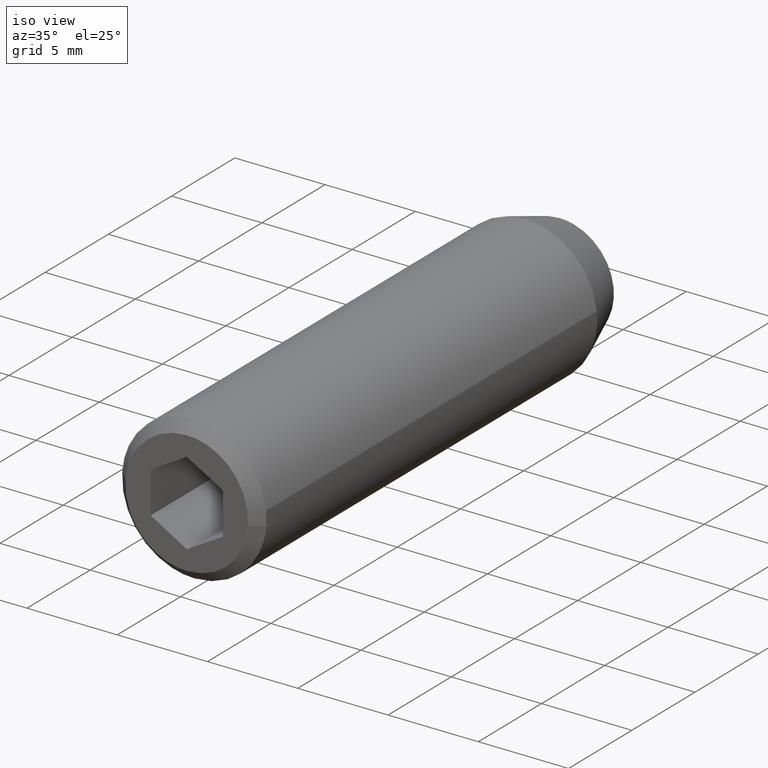
[diagram: clean part render]
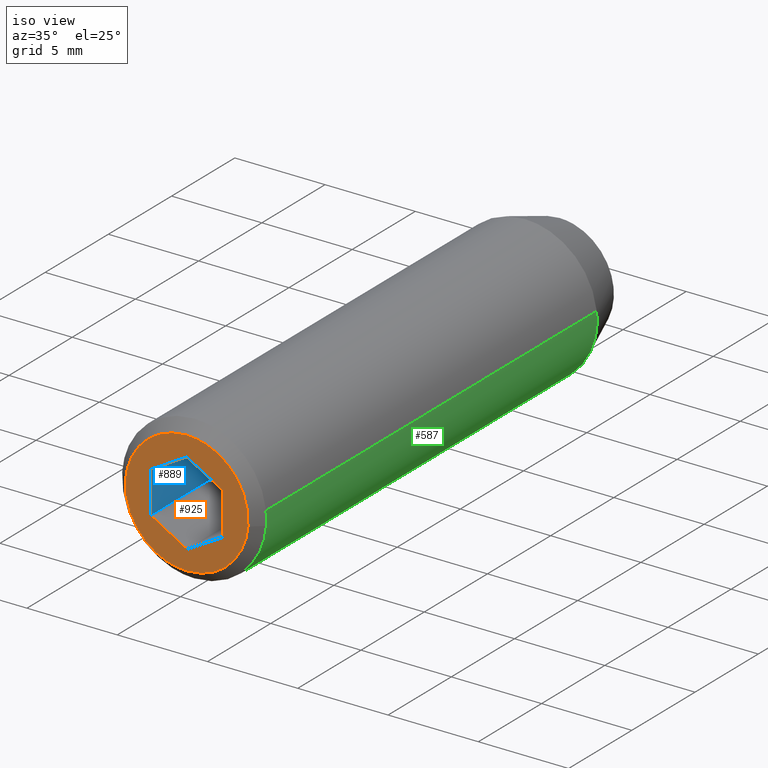
[diagram: same view with three faces highlighted in distinct colors, each labeled with its STEP entity id]
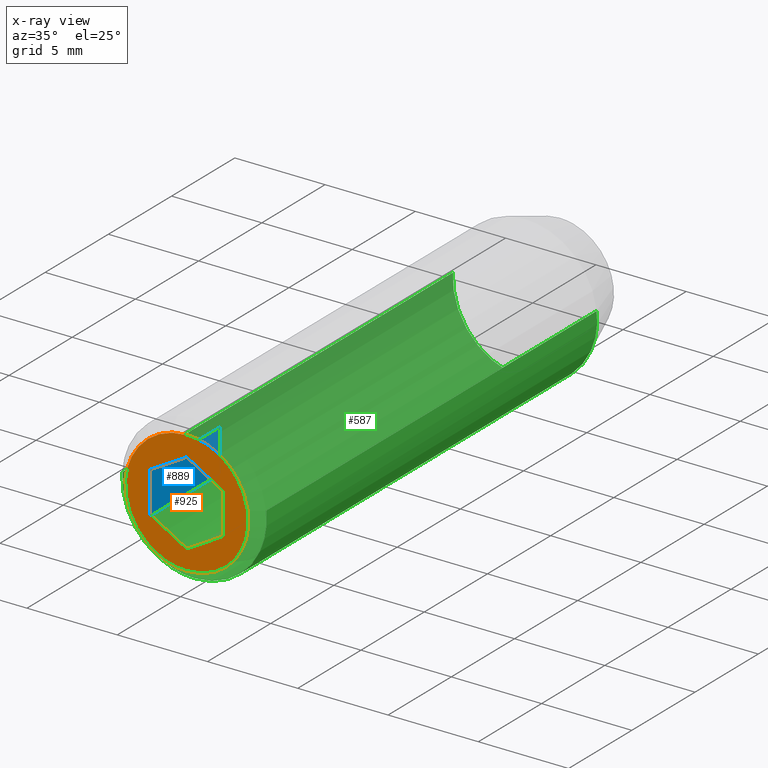
[diagram: x-ray of the same camera — body ghosted, the three highlighted faces saturated]
A machine part, iso view with three faces highlighted in distinct colors.
The next image is the same camera in x-ray (body ghosted, the three faces saturated) — at least one of them is partly hidden behind the body in this view.
Their STEP definitions:

[orange] entity #925 — the highlighted face is a freeform B-spline surface patch.
#607=CARTESIAN_POINT('',(3.389518934695521,-29.499999999992710,-0.266760925530903));
#608=VERTEX_POINT('',#607);
#614=CARTESIAN_POINT('',(0.0,-29.500000000000000,-3.400000000000001));
#615=VERTEX_POINT('',#614);
#616=CARTESIAN_POINT('',(0.0,-29.500000000000000,-3.400000000000001));
#617=CARTESIAN_POINT('',(3.142927671534371,-29.499999999999996,-3.400000000000002));
#618=CARTESIAN_POINT('',(3.389518934695521,-29.499999999992717,-0.266760925530903));
#626=(BOUNDED_CURVE()B_SPLINE_CURVE(2,(#616,#617,#618),.UNSPECIFIED.,.F.,.U.)B_SPLINE_CURVE_WITH_KNOTS((3,3),(0.0,0.236331300627137),.UNSPECIFIED.)CURVE()GEOMETRIC_REPRESENTATION_ITEM()RATIONAL_B_SPLINE_CURVE((1.0,0.723120658611792,0.969723356160067))REPRESENTATION_ITEM(''));
#627=EDGE_CURVE('',#615,#608,#626,.T.);
#629=CARTESIAN_POINT('',(-3.389518934695521,-29.499999999992710,0.266760925530902));
#630=VERTEX_POINT('',#629);
#631=CARTESIAN_POINT('',(-3.389518934695520,-29.499999999992713,0.266760925530902));
#632=CARTESIAN_POINT('',(-3.400000000000000,-29.500000000000004,0.133586363881992));
#633=CARTESIAN_POINT('',(-3.400000000000000,-29.500000000000000,-6.735335E-016));
#634=CARTESIAN_POINT('',(-3.400000000000001,-29.499999999999996,-3.400000000000002));
#635=CARTESIAN_POINT('',(0.0,-29.500000000000000,-3.400000000000001));
#643=(BOUNDED_CURVE()B_SPLINE_CURVE(2,(#631,#632,#633,#634,#635),.UNSPECIFIED.,.F.,.U.)B_SPLINE_CURVE_WITH_KNOTS((3,2,3),(0.736331300627137,0.750000000000000,1.0),.UNSPECIFIED.)CURVE()GEOMETRIC_REPRESENTATION_ITEM()RATIONAL_B_SPLINE_CURVE((0.969723356160067,0.983986122574755,1.0,0.707106781186548,1.0))REPRESENTATION_ITEM(''));
#644=EDGE_CURVE('',#630,#615,#643,.T.);
#678=CARTESIAN_POINT('',(0.0,-29.500000000000000,3.399999999999999));
#679=VERTEX_POINT('',#678);
#680=CARTESIAN_POINT('',(0.0,-29.500000000000000,3.399999999999999));
#681=CARTESIAN_POINT('',(-3.142927671534371,-29.499999999999996,3.399999999999999));
#682=CARTESIAN_POINT('',(-3.389518934695521,-29.499999999992706,0.266760925530902));
#690=(BOUNDED_CURVE()B_SPLINE_CURVE(2,(#680,#681,#682),.UNSPECIFIED.,.F.,.U.)B_SPLINE_CURVE_WITH_KNOTS((3,3),(0.500000000000000,0.736331300627137),.UNSPECIFIED.)CURVE()GEOMETRIC_REPRESENTATION_ITEM()RATIONAL_B_SPLINE_CURVE((1.0,0.723120658611792,0.969723356160067))REPRESENTATION_ITEM(''));
#691=EDGE_CURVE('',#679,#630,#690,.T.);
#693=CARTESIAN_POINT('',(3.389518934695521,-29.499999999992717,-0.266760925530903));
#694=CARTESIAN_POINT('',(3.400000000000000,-29.500000000000000,-0.133586363881993));
#695=CARTESIAN_POINT('',(3.400000000000000,-29.500000000000000,-6.735335E-016));
#696=CARTESIAN_POINT('',(3.400000000000001,-29.499999999999996,3.399999999999999));
#697=CARTESIAN_POINT('',(0.0,-29.500000000000000,3.399999999999999));
#705=(BOUNDED_CURVE()B_SPLINE_CURVE(2,(#693,#694,#695,#696,#697),.UNSPECIFIED.,.F.,.U.)B_SPLINE_CURVE_WITH_KNOTS((3,2,3),(0.236331300627137,0.250000000000000,0.500000000000000),.UNSPECIFIED.)CURVE()GEOMETRIC_REPRESENTATION_ITEM()RATIONAL_B_SPLINE_CURVE((0.969723356160067,0.983986122574755,1.0,0.707106781186548,1.0))REPRESENTATION_ITEM(''));
#706=EDGE_CURVE('',#608,#679,#705,.T.);
#779=CARTESIAN_POINT('',(2.0,-29.500000000000000,1.154701000000000));
#780=VERTEX_POINT('',#779);
#781=CARTESIAN_POINT('',(0.0,-29.500000000000000,2.309401000000000));
#782=VERTEX_POINT('',#781);
#783=CARTESIAN_POINT('',(2.0,-29.500000000000000,1.154701000000000));
#784=CARTESIAN_POINT('',(0.0,-29.500000000000000,2.309401000000000));
#785=QUASI_UNIFORM_CURVE('',1,(#783,#784),.UNSPECIFIED.,.F.,.U.);
#786=EDGE_CURVE('',#780,#782,#785,.T.);
#807=CARTESIAN_POINT('',(2.0,-29.500000000000000,-1.154701000000000));
#808=VERTEX_POINT('',#807);
#809=CARTESIAN_POINT('',(2.0,-29.500000000000000,-1.154701000000000));
#810=CARTESIAN_POINT('',(2.0,-29.500000000000000,1.154701000000000));
#811=QUASI_UNIFORM_CURVE('',1,(#809,#810),.UNSPECIFIED.,.F.,.U.);
#812=EDGE_CURVE('',#808,#780,#811,.T.);
#829=CARTESIAN_POINT('',(0.0,-29.500000000000000,-2.309401000000000));
#830=VERTEX_POINT('',#829);
#831=CARTESIAN_POINT('',(0.0,-29.500000000000000,-2.309401000000000));
#832=CARTESIAN_POINT('',(2.0,-29.500000000000000,-1.154701000000000));
#833=QUASI_UNIFORM_CURVE('',1,(#831,#832),.UNSPECIFIED.,.F.,.U.);
#834=EDGE_CURVE('',#830,#808,#833,.T.);
#851=CARTESIAN_POINT('',(-2.0,-29.500000000000000,-1.154701000000000));
#852=VERTEX_POINT('',#851);
#853=CARTESIAN_POINT('',(-2.0,-29.500000000000000,-1.154701000000000));
#854=CARTESIAN_POINT('',(0.0,-29.500000000000000,-2.309401000000000));
#855=QUASI_UNIFORM_CURVE('',1,(#853,#854),.UNSPECIFIED.,.F.,.U.);
#856=EDGE_CURVE('',#852,#830,#855,.T.);
#873=CARTESIAN_POINT('',(-2.0,-29.500000000000000,1.154701000000000));
#874=VERTEX_POINT('',#873);
#875=CARTESIAN_POINT('',(-2.0,-29.500000000000000,1.154701000000000));
#876=CARTESIAN_POINT('',(-2.0,-29.500000000000000,-1.154701000000000));
#877=QUASI_UNIFORM_CURVE('',1,(#875,#876),.UNSPECIFIED.,.F.,.U.);
#878=EDGE_CURVE('',#874,#852,#877,.T.);
#895=CARTESIAN_POINT('',(0.0,-29.500000000000000,2.309401000000000));
#896=CARTESIAN_POINT('',(-2.0,-29.500000000000000,1.154701000000000));
#897=QUASI_UNIFORM_CURVE('',1,(#895,#896),.UNSPECIFIED.,.F.,.U.);
#898=EDGE_CURVE('',#782,#874,#897,.T.);
#906=CARTESIAN_POINT('',(-3.738622159271267,-29.500000000000000,3.739660114487349));
#907=CARTESIAN_POINT('',(-3.738622159271267,-29.500000000000000,-3.739660175284088));
#908=CARTESIAN_POINT('',(3.738622341661480,-29.500000000000000,3.739660114487349));
#909=CARTESIAN_POINT('',(3.738622341661480,-29.500000000000000,-3.739660175284088));
#910=B_SPLINE_SURFACE_WITH_KNOTS('',1,1,((#906,#908),(#907,#909)),.UNSPECIFIED.,.F.,.F.,.U.,(2,2),(2,2),(0.0,7.479320289771438),(0.0,7.477244500932747),.UNSPECIFIED.);
#911=ORIENTED_EDGE('',*,*,#627,.T.);
#912=ORIENTED_EDGE('',*,*,#706,.T.);
#913=ORIENTED_EDGE('',*,*,#691,.T.);
#914=ORIENTED_EDGE('',*,*,#644,.T.);
#915=EDGE_LOOP('',(#911,#912,#913,#914));
#916=FACE_OUTER_BOUND('',#915,.T.);
#917=ORIENTED_EDGE('',*,*,#898,.F.);
#918=ORIENTED_EDGE('',*,*,#786,.F.);
#919=ORIENTED_EDGE('',*,*,#812,.F.);
#920=ORIENTED_EDGE('',*,*,#834,.F.);
#921=ORIENTED_EDGE('',*,*,#856,.F.);
#922=ORIENTED_EDGE('',*,*,#878,.F.);
#923=EDGE_LOOP('',(#917,#918,#919,#920,#921,#922));
#924=FACE_BOUND('',#923,.T.);
#925=ADVANCED_FACE('',(#916,#924),#910,.T.);

[blue] entity #889 — the highlighted face is a freeform B-spline surface patch.
#731=CARTESIAN_POINT('',(-2.0,-24.0,1.154701000000000));
#732=VERTEX_POINT('',#731);
#738=CARTESIAN_POINT('',(-2.0,-24.0,-1.154701000000000));
#739=VERTEX_POINT('',#738);
#740=CARTESIAN_POINT('',(-2.0,-24.0,1.154701000000000));
#741=CARTESIAN_POINT('',(-2.0,-24.0,-1.154701000000000));
#742=QUASI_UNIFORM_CURVE('',1,(#740,#741),.UNSPECIFIED.,.F.,.U.);
#743=EDGE_CURVE('',#732,#739,#742,.T.);
#851=CARTESIAN_POINT('',(-2.0,-29.500000000000000,-1.154701000000000));
#852=VERTEX_POINT('',#851);
#860=CARTESIAN_POINT('',(-2.0,-24.0,-1.154701000000000));
#861=CARTESIAN_POINT('',(-2.0,-29.500000000000000,-1.154701000000000));
#862=QUASI_UNIFORM_CURVE('',1,(#860,#861),.UNSPECIFIED.,.F.,.U.);
#863=EDGE_CURVE('',#739,#852,#862,.T.);
#868=CARTESIAN_POINT('',(-2.0,-29.774724989339930,-1.270055625423931));
#869=CARTESIAN_POINT('',(-2.0,-29.774724989339930,1.270055687366919));
#870=CARTESIAN_POINT('',(-2.0,-23.725274863138569,-1.270055625423931));
#871=CARTESIAN_POINT('',(-2.0,-23.725274863138569,1.270055687366919));
#872=B_SPLINE_SURFACE_WITH_KNOTS('',1,1,((#868,#870),(#869,#871)),.UNSPECIFIED.,.F.,.F.,.U.,(2,2),(2,2),(0.0,2.540111312790850),(0.0,6.049450126201364),.UNSPECIFIED.);
#873=CARTESIAN_POINT('',(-2.0,-29.500000000000000,1.154701000000000));
#874=VERTEX_POINT('',#873);
#875=CARTESIAN_POINT('',(-2.0,-29.500000000000000,1.154701000000000));
#876=CARTESIAN_POINT('',(-2.0,-29.500000000000000,-1.154701000000000));
#877=QUASI_UNIFORM_CURVE('',1,(#875,#876),.UNSPECIFIED.,.F.,.U.);
#878=EDGE_CURVE('',#874,#852,#877,.T.);
#879=ORIENTED_EDGE('',*,*,#878,.T.);
#880=ORIENTED_EDGE('',*,*,#863,.F.);
#881=ORIENTED_EDGE('',*,*,#743,.F.);
#882=CARTESIAN_POINT('',(-2.0,-24.0,1.154701000000000));
#883=CARTESIAN_POINT('',(-2.0,-29.500000000000000,1.154701000000000));
#884=QUASI_UNIFORM_CURVE('',1,(#882,#883),.UNSPECIFIED.,.F.,.U.);
#885=EDGE_CURVE('',#732,#874,#884,.T.);
#886=ORIENTED_EDGE('',*,*,#885,.T.);
#887=EDGE_LOOP('',(#879,#880,#881,#886));
#888=FACE_OUTER_BOUND('',#887,.T.);
#889=ADVANCED_FACE('',(#888),#872,.F.);

[green] entity #587 — the highlighted face is a freeform B-spline surface patch.
#305=CARTESIAN_POINT('',(-3.992539330740283,-2.747476996330162,0.244191895424097));
#306=VERTEX_POINT('',#305);
#327=CARTESIAN_POINT('',(3.973877327542598,-2.747477000000000,0.456397837001159));
#328=VERTEX_POINT('',#327);
#342=CARTESIAN_POINT('',(0.0,-2.747477000000000,-4.000000000000001));
#343=VERTEX_POINT('',#342);
#344=CARTESIAN_POINT('',(0.0,-2.747477000000000,-4.000000000000001));
#345=CARTESIAN_POINT('',(4.000000000000000,-2.747477000000000,-4.000000000000001));
#346=CARTESIAN_POINT('',(4.0,-2.747477000000000,-6.735335E-016));
#347=CARTESIAN_POINT('',(4.0,-2.747477000000000,0.228946505321762));
#348=CARTESIAN_POINT('',(3.973877327542598,-2.747477000000000,0.456397837001159));
#356=(BOUNDED_CURVE()B_SPLINE_CURVE(2,(#344,#345,#346,#347,#348),.UNSPECIFIED.,.F.,.U.)B_SPLINE_CURVE_WITH_KNOTS((3,2,3),(0.0,0.250000000000000,0.269767550523078),.UNSPECIFIED.)CURVE()GEOMETRIC_REPRESENTATION_ITEM()RATIONAL_B_SPLINE_CURVE((1.0,0.707106781186548,1.0,0.976840873996953,0.957344141540590))REPRESENTATION_ITEM(''));
#357=EDGE_CURVE('',#343,#328,#356,.T.);
#359=CARTESIAN_POINT('',(-3.243894291882287,-2.747477000000121,-2.340331135351121));
#360=VERTEX_POINT('',#359);
#361=CARTESIAN_POINT('',(-3.243894291882287,-2.747477000000120,-2.340331135351120));
#362=CARTESIAN_POINT('',(-2.046514115828706,-2.747477000000000,-4.000000000000002));
#363=CARTESIAN_POINT('',(0.0,-2.747477000000000,-4.000000000000001));
#371=(BOUNDED_CURVE()B_SPLINE_CURVE(2,(#361,#362,#363),.UNSPECIFIED.,.F.,.U.)B_SPLINE_CURVE_WITH_KNOTS((3,3),(0.850743050382089,1.0),.UNSPECIFIED.)CURVE()GEOMETRIC_REPRESENTATION_ITEM()RATIONAL_B_SPLINE_CURVE((0.859068214727304,0.825134606384530,1.0))REPRESENTATION_ITEM(''));
#372=EDGE_CURVE('',#360,#343,#371,.T.);
#412=CARTESIAN_POINT('',(-3.992539330740283,-2.747476996330162,0.244191895424097));
#413=CARTESIAN_POINT('',(-4.000000000000001,-2.747477000000000,0.122209918705447));
#414=CARTESIAN_POINT('',(-4.0,-2.747477000000000,-6.735335E-016));
#415=CARTESIAN_POINT('',(-4.0,-2.747477000000000,-1.292305514714619));
#416=CARTESIAN_POINT('',(-3.243894291882287,-2.747477000000120,-2.340331135351120));
#424=(BOUNDED_CURVE()B_SPLINE_CURVE(2,(#412,#413,#414,#415,#416),.UNSPECIFIED.,.F.,.U.)B_SPLINE_CURVE_WITH_KNOTS((3,2,3),(0.739333060026910,0.750000000000000,0.850743050382089),.UNSPECIFIED.)CURVE()GEOMETRIC_REPRESENTATION_ITEM()RATIONAL_B_SPLINE_CURVE((0.976072251245035,0.987502902465567,1.0,0.881972174802017,0.859068214727304))REPRESENTATION_ITEM(''));
#425=EDGE_CURVE('',#306,#360,#424,.T.);
#449=CARTESIAN_POINT('',(3.973876773740693,-28.899999999999999,0.456402658980265));
#450=VERTEX_POINT('',#449);
#466=CARTESIAN_POINT('',(3.973877327542598,-2.747477000000000,0.456397837001159));
#467=CARTESIAN_POINT('',(3.973876773740693,-28.899999999999999,0.456402658980265));
#468=QUASI_UNIFORM_CURVE('',1,(#466,#467),.UNSPECIFIED.,.F.,.U.);
#469=EDGE_CURVE('',#328,#450,#468,.T.);
#473=CARTESIAN_POINT('',(-3.992539217398161,-28.899999999999999,0.244193770472403));
#474=VERTEX_POINT('',#473);
#475=CARTESIAN_POINT('',(-3.992539330740283,-2.747476996330162,0.244191895424097));
#476=CARTESIAN_POINT('',(-3.992539217398161,-28.899999999999999,0.244193770472403));
#477=QUASI_UNIFORM_CURVE('',1,(#475,#476),.UNSPECIFIED.,.F.,.U.);
#478=EDGE_CURVE('',#306,#474,#477,.T.);
#511=CARTESIAN_POINT('',(-3.992539193687467,-2.093663924999999,0.244194158139427));
#512=CARTESIAN_POINT('',(-4.236733351826894,-2.093663924999998,-3.748345035548040));
#513=CARTESIAN_POINT('',(-0.244194158139428,-2.093663924999999,-3.992539193687468));
#514=CARTESIAN_POINT('',(3.748345035548039,-2.093663924999998,-4.236733351826896));
#515=CARTESIAN_POINT('',(3.992539193687467,-2.093663924999999,-0.244194158139429));
#516=CARTESIAN_POINT('',(4.014014553579111,-2.093663924999999,0.106924872386186));
#517=CARTESIAN_POINT('',(3.973876773742854,-2.093663925000000,0.456402658961441));
#518=CARTESIAN_POINT('',(-3.992539193687467,-29.570158401875009,0.244194158139427));
#519=CARTESIAN_POINT('',(-4.236733351826894,-29.570158401875005,-3.748345035548040));
#520=CARTESIAN_POINT('',(-0.244194158139428,-29.570158401875009,-3.992539193687468));
#521=CARTESIAN_POINT('',(3.748345035548039,-29.570158401875005,-4.236733351826896));
#522=CARTESIAN_POINT('',(3.992539193687467,-29.570158401875009,-0.244194158139429));
#523=CARTESIAN_POINT('',(4.014014553579111,-29.570158401875013,0.106924872386186));
#524=CARTESIAN_POINT('',(3.973876773742854,-29.570158401875009,0.456402658961441));
#532=(BOUNDED_SURFACE()B_SPLINE_SURFACE(2,1,((#511,#518),(#512,#519),(#513,#520),(#514,#521),(#515,#522),(#516,#523),(#517,#524)),.UNSPECIFIED.,.F.,.F.,.U.)B_SPLINE_SURFACE_WITH_KNOTS((3,2,2,3),(2,2),(0.0,6.627416997969519,13.254833995939039,14.050124035695379),(0.0,27.476494476875011),.UNSPECIFIED.)GEOMETRIC_REPRESENTATION_ITEM()RATIONAL_B_SPLINE_SURFACE(((1.0,1.0),(0.707106781186548,0.707106781186548),(1.0,1.0),(0.707106781186548,0.707106781186548),(1.0,1.0),(0.964852813742386,0.964852813742386),(0.938140952186599,0.938140952186599)))REPRESENTATION_ITEM('')SURFACE());
#533=CARTESIAN_POINT('',(3.987669334933532,-28.899999999997480,-0.313836382930739));
#534=VERTEX_POINT('',#533);
#535=CARTESIAN_POINT('',(3.987669334933532,-28.899999999997476,-0.313836382930739));
#536=CARTESIAN_POINT('',(4.0,-28.900000000000002,-0.157160428049926));
#537=CARTESIAN_POINT('',(4.0,-28.899999999999999,-6.735335E-016));
#538=CARTESIAN_POINT('',(4.0,-28.899999999999999,0.228948940120183));
#539=CARTESIAN_POINT('',(3.973876773740693,-28.899999999999999,0.456402658980265));
#547=(BOUNDED_CURVE()B_SPLINE_CURVE(2,(#535,#536,#537,#538,#539),.UNSPECIFIED.,.F.,.U.)B_SPLINE_CURVE_WITH_KNOTS((3,2,3),(0.236331300631120,0.250000000000000,0.269767755878213),.UNSPECIFIED.)CURVE()GEOMETRIC_REPRESENTATION_ITEM()RATIONAL_B_SPLINE_CURVE((0.969723356168378,0.983986122579421,1.0,0.976840633408447,0.957343736457500))REPRESENTATION_ITEM(''));
#548=EDGE_CURVE('',#534,#450,#547,.T.);
#549=ORIENTED_EDGE('',*,*,#548,.F.);
#550=CARTESIAN_POINT('',(0.0,-28.899999999999999,-4.000000000000001));
#551=VERTEX_POINT('',#550);
#552=CARTESIAN_POINT('',(0.0,-28.899999999999999,-4.000000000000001));
#553=CARTESIAN_POINT('',(3.697561966597188,-28.899999999999995,-4.0));
#554=CARTESIAN_POINT('',(3.987669334933532,-28.899999999997476,-0.313836382930739));
#562=(BOUNDED_CURVE()B_SPLINE_CURVE(2,(#552,#553,#554),.UNSPECIFIED.,.F.,.U.)B_SPLINE_CURVE_WITH_KNOTS((3,3),(0.0,0.236331300631120),.UNSPECIFIED.)CURVE()GEOMETRIC_REPRESENTATION_ITEM()RATIONAL_B_SPLINE_CURVE((1.0,0.723120658607127,0.969723356168378))REPRESENTATION_ITEM(''));
#563=EDGE_CURVE('',#551,#534,#562,.T.);
#564=ORIENTED_EDGE('',*,*,#563,.F.);
#565=CARTESIAN_POINT('',(-3.992539217398161,-28.899999999999995,0.244193770472403));
#566=CARTESIAN_POINT('',(-4.0,-28.899999999999999,0.122210664440354));
#567=CARTESIAN_POINT('',(-4.0,-28.899999999999999,-6.735335E-016));
#568=CARTESIAN_POINT('',(-4.000000000000000,-28.900000000000006,-4.000000000000001));
#569=CARTESIAN_POINT('',(0.0,-28.899999999999999,-4.000000000000001));
#577=(BOUNDED_CURVE()B_SPLINE_CURVE(2,(#565,#566,#567,#568,#569),.UNSPECIFIED.,.F.,.U.)B_SPLINE_CURVE_WITH_KNOTS((3,2,3),(0.739332995749818,0.750000000000000,1.0),.UNSPECIFIED.)CURVE()GEOMETRIC_REPRESENTATION_ITEM()RATIONAL_B_SPLINE_CURVE((0.976072113486914,0.987502827160270,1.0,0.707106781186548,1.0))REPRESENTATION_ITEM(''));
#578=EDGE_CURVE('',#474,#551,#577,.T.);
#579=ORIENTED_EDGE('',*,*,#578,.F.);
#580=ORIENTED_EDGE('',*,*,#478,.F.);
#581=ORIENTED_EDGE('',*,*,#425,.T.);
#582=ORIENTED_EDGE('',*,*,#372,.T.);
#583=ORIENTED_EDGE('',*,*,#357,.T.);
#584=ORIENTED_EDGE('',*,*,#469,.T.);
#585=EDGE_LOOP('',(#549,#564,#579,#580,#581,#582,#583,#584));
#586=FACE_OUTER_BOUND('',#585,.T.);
#587=ADVANCED_FACE('',(#586),#532,.T.);